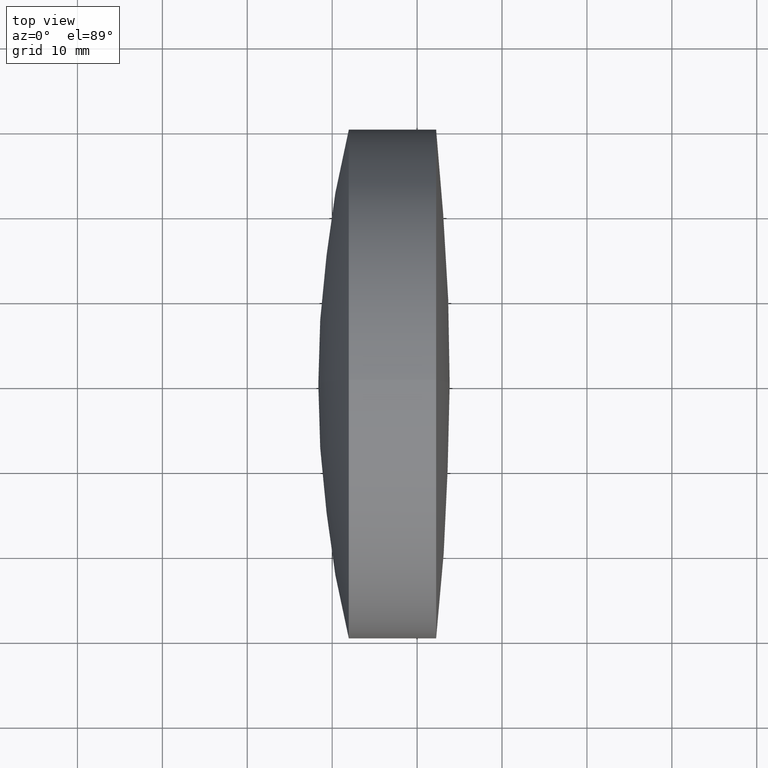
[diagram: clean part render]
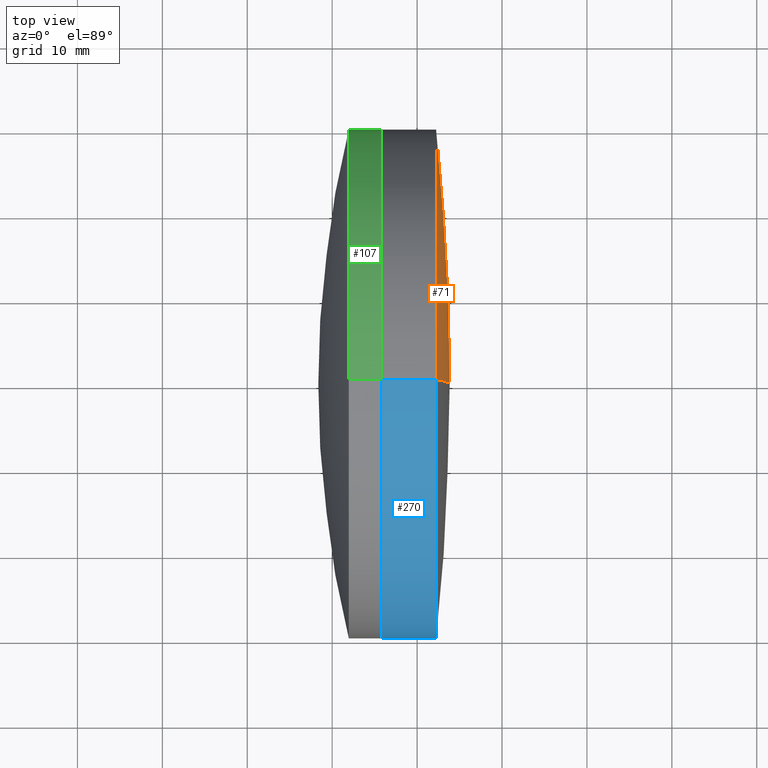
[diagram: same view with three faces highlighted in distinct colors, each labeled with its STEP entity id]
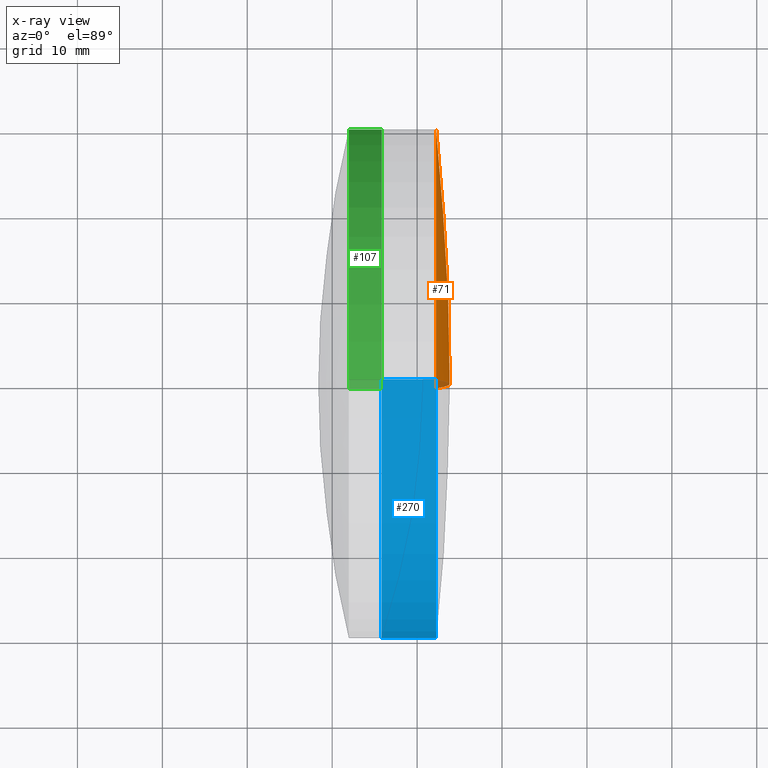
[diagram: x-ray of the same camera — body ghosted, the three highlighted faces saturated]
A machine part, top view with three faces highlighted in distinct colors.
The next image is the same camera in x-ray (body ghosted, the three faces saturated) — at least one of them is partly hidden behind the body in this view.
Their STEP definitions:

[orange] entity #71 — the highlighted spherical surface has radius 282.8 mm.
#3 = CARTESIAN_POINT ( 'NONE',  ( 31.03762555122546700, 0.0000000000000000000, 0.0000000000000000000 ) ) ;
#5 = CARTESIAN_POINT ( 'NONE',  ( 312.2418929441652700, 0.0000000000000000000, 0.0000000000000000000 ) ) ;
#14 = AXIS2_PLACEMENT_3D ( 'NONE', #110, #120, #284 ) ;
#16 = SPHERICAL_SURFACE ( 'NONE', #269, 282.7999999999999500 ) ;
#27 = CARTESIAN_POINT ( 'NONE',  ( 312.2418929441652700, 3.673940397442056800E-015, -29.99999999999997900 ) ) ;
#37 = CIRCLE ( 'NONE', #175, 282.7999999999999500 ) ;
#44 = CARTESIAN_POINT ( 'NONE',  ( 31.03762555122546700, 0.0000000000000000000, 0.0000000000000000000 ) ) ;
#69 = EDGE_CURVE ( 'NONE', #99, #293, #185, .T. ) ;
#71 = ADVANCED_FACE ( 'NONE', ( #342 ), #16, .T. ) ;
#92 = DIRECTION ( 'NONE',  ( -0.0000000000000000000, 1.000000000000000000, 1.224646799147353200E-016 ) ) ;
#99 = VERTEX_POINT ( 'NONE', #236 ) ;
#106 = ORIENTED_EDGE ( 'NONE', *, *, #292, .F. ) ;
#110 = CARTESIAN_POINT ( 'NONE',  ( 31.03762555122546700, 0.0000000000000000000, 0.0000000000000000000 ) ) ;
#111 = DIRECTION ( 'NONE',  ( 0.0000000000000000000, 1.000000000000000000, 0.0000000000000000000 ) ) ;
#112 = EDGE_LOOP ( 'NONE', ( #106, #132, #188 ) ) ;
#114 = VERTEX_POINT ( 'NONE', #273 ) ;
#120 = DIRECTION ( 'NONE',  ( 0.0000000000000000000, -1.000000000000000000, 0.0000000000000000000 ) ) ;
#132 = ORIENTED_EDGE ( 'NONE', *, *, #157, .T. ) ;
#157 = EDGE_CURVE ( 'NONE', #114, #293, #37, .T. ) ;
#175 = AXIS2_PLACEMENT_3D ( 'NONE', #44, #92, #346 ) ;
#185 = CIRCLE ( 'NONE', #192, 29.99999999999997900 ) ;
#188 = ORIENTED_EDGE ( 'NONE', *, *, #69, .F. ) ;
#192 = AXIS2_PLACEMENT_3D ( 'NONE', #5, #205, #317 ) ;
#203 = DIRECTION ( 'NONE',  ( 0.0000000000000000000, 0.0000000000000000000, 1.000000000000000000 ) ) ;
#205 = DIRECTION ( 'NONE',  ( -1.000000000000000000, -0.0000000000000000000, -0.0000000000000000000 ) ) ;
#236 = CARTESIAN_POINT ( 'NONE',  ( 312.2418929441652700, 0.0000000000000000000, 29.99999999999997900 ) ) ;
#269 = AXIS2_PLACEMENT_3D ( 'NONE', #3, #111, #203 ) ;
#273 = CARTESIAN_POINT ( 'NONE',  ( 313.8376255512254100, 0.0000000000000000000, 1.731650573994357100E-014 ) ) ;
#284 = DIRECTION ( 'NONE',  ( 0.0000000000000000000, 0.0000000000000000000, -1.000000000000000000 ) ) ;
#292 = EDGE_CURVE ( 'NONE', #114, #99, #294, .T. ) ;
#293 = VERTEX_POINT ( 'NONE', #27 ) ;
#294 = CIRCLE ( 'NONE', #14, 282.7999999999999500 ) ;
#317 = DIRECTION ( 'NONE',  ( 0.0000000000000000000, 0.0000000000000000000, 1.000000000000000000 ) ) ;
#342 = FACE_OUTER_BOUND ( 'NONE', #112, .T. ) ;
#346 = DIRECTION ( 'NONE',  ( 0.0000000000000000000, -1.224646799147353200E-016, 1.000000000000000000 ) ) ;

[blue] entity #270 — the highlighted cylindrical surface (partial cylindrical patch) has radius 30 mm, axis along (-1, -0, -0).
#6 = DIRECTION ( 'NONE',  ( -1.000000000000000000, -0.0000000000000000000, -0.0000000000000000000 ) ) ;
#9 = ORIENTED_EDGE ( 'NONE', *, *, #252, .T. ) ;
#10 = CIRCLE ( 'NONE', #260, 29.99999999999997900 ) ;
#21 = VECTOR ( 'NONE', #86, 1000.000000000000000 ) ;
#27 = CARTESIAN_POINT ( 'NONE',  ( 312.2418929441652700, 3.673940397442056800E-015, -29.99999999999997900 ) ) ;
#30 = AXIS2_PLACEMENT_3D ( 'NONE', #321, #319, #148 ) ;
#39 = FACE_OUTER_BOUND ( 'NONE', #251, .T. ) ;
#46 = LINE ( 'NONE', #151, #21 ) ;
#48 = ORIENTED_EDGE ( 'NONE', *, *, #150, .T. ) ;
#54 = DIRECTION ( 'NONE',  ( 0.0000000000000000000, 0.0000000000000000000, 1.000000000000000000 ) ) ;
#75 = VERTEX_POINT ( 'NONE', #170 ) ;
#85 = ORIENTED_EDGE ( 'NONE', *, *, #176, .F. ) ;
#86 = DIRECTION ( 'NONE',  ( -1.000000000000000000, -0.0000000000000000000, -0.0000000000000000000 ) ) ;
#88 = VERTEX_POINT ( 'NONE', #182 ) ;
#99 = VERTEX_POINT ( 'NONE', #236 ) ;
#122 = CIRCLE ( 'NONE', #126, 29.99999999999998900 ) ;
#123 = VECTOR ( 'NONE', #184, 1000.000000000000000 ) ;
#126 = AXIS2_PLACEMENT_3D ( 'NONE', #318, #135, #54 ) ;
#133 = LINE ( 'NONE', #345, #123 ) ;
#135 = DIRECTION ( 'NONE',  ( -1.000000000000000000, -0.0000000000000000000, -0.0000000000000000000 ) ) ;
#144 = CARTESIAN_POINT ( 'NONE',  ( 312.2418929441652700, 0.0000000000000000000, 0.0000000000000000000 ) ) ;
#148 = DIRECTION ( 'NONE',  ( 0.0000000000000000000, 0.0000000000000000000, 1.000000000000000000 ) ) ;
#150 = EDGE_CURVE ( 'NONE', #99, #88, #46, .T. ) ;
#151 = CARTESIAN_POINT ( 'NONE',  ( -0.5519199926577972300, 0.0000000000000000000, 29.99999999999998600 ) ) ;
#170 = CARTESIAN_POINT ( 'NONE',  ( 305.8239199956201400, 3.673940397442058400E-015, -29.99999999999998900 ) ) ;
#176 = EDGE_CURVE ( 'NONE', #75, #88, #122, .T. ) ;
#182 = CARTESIAN_POINT ( 'NONE',  ( 305.8239199956201400, 0.0000000000000000000, 29.99999999999998900 ) ) ;
#184 = DIRECTION ( 'NONE',  ( -1.000000000000000000, -0.0000000000000000000, -0.0000000000000000000 ) ) ;
#214 = ORIENTED_EDGE ( 'NONE', *, *, #235, .F. ) ;
#221 = CYLINDRICAL_SURFACE ( 'NONE', #30, 29.99999999999998600 ) ;
#235 = EDGE_CURVE ( 'NONE', #293, #75, #133, .T. ) ;
#236 = CARTESIAN_POINT ( 'NONE',  ( 312.2418929441652700, 0.0000000000000000000, 29.99999999999997900 ) ) ;
#251 = EDGE_LOOP ( 'NONE', ( #214, #9, #48, #85 ) ) ;
#252 = EDGE_CURVE ( 'NONE', #293, #99, #10, .T. ) ;
#260 = AXIS2_PLACEMENT_3D ( 'NONE', #144, #6, #311 ) ;
#270 = ADVANCED_FACE ( 'NONE', ( #39 ), #221, .T. ) ;
#293 = VERTEX_POINT ( 'NONE', #27 ) ;
#311 = DIRECTION ( 'NONE',  ( 0.0000000000000000000, 0.0000000000000000000, 1.000000000000000000 ) ) ;
#318 = CARTESIAN_POINT ( 'NONE',  ( 305.8239199956201400, 0.0000000000000000000, 0.0000000000000000000 ) ) ;
#319 = DIRECTION ( 'NONE',  ( -1.000000000000000000, -0.0000000000000000000, -0.0000000000000000000 ) ) ;
#321 = CARTESIAN_POINT ( 'NONE',  ( -0.5519199926577972300, 0.0000000000000000000, 0.0000000000000000000 ) ) ;
#345 = CARTESIAN_POINT ( 'NONE',  ( -0.5519199926577972300, 3.673940397442057600E-015, -29.99999999999998600 ) ) ;

[green] entity #107 — the highlighted cylindrical surface (partial cylindrical patch) has radius 30 mm, axis along (-1, -0, -0).
#7 = CYLINDRICAL_SURFACE ( 'NONE', #142, 30.00000000000000400 ) ;
#18 = VERTEX_POINT ( 'NONE', #164 ) ;
#19 = ORIENTED_EDGE ( 'NONE', *, *, #332, .F. ) ;
#25 = AXIS2_PLACEMENT_3D ( 'NONE', #97, #220, #291 ) ;
#40 = VERTEX_POINT ( 'NONE', #337 ) ;
#45 = DIRECTION ( 'NONE',  ( -1.000000000000000000, -0.0000000000000000000, -0.0000000000000000000 ) ) ;
#50 = CARTESIAN_POINT ( 'NONE',  ( 301.9579216428196600, 0.0000000000000000000, 0.0000000000000000000 ) ) ;
#62 = CARTESIAN_POINT ( 'NONE',  ( 124.5233095260452400, 0.0000000000000000000, 0.0000000000000000000 ) ) ;
#70 = CARTESIAN_POINT ( 'NONE',  ( 305.8239199956201400, 3.673940397442060000E-015, -30.00000000000000400 ) ) ;
#74 = DIRECTION ( 'NONE',  ( 0.0000000000000000000, 0.0000000000000000000, 1.000000000000000000 ) ) ;
#82 = EDGE_LOOP ( 'NONE', ( #283, #129, #306, #19 ) ) ;
#83 = EDGE_CURVE ( 'NONE', #91, #103, #226, .T. ) ;
#91 = VERTEX_POINT ( 'NONE', #168 ) ;
#97 = CARTESIAN_POINT ( 'NONE',  ( 305.8239199956201400, 0.0000000000000000000, 0.0000000000000000000 ) ) ;
#103 = VERTEX_POINT ( 'NONE', #70 ) ;
#107 = ADVANCED_FACE ( 'NONE', ( #136 ), #7, .T. ) ;
#108 = EDGE_CURVE ( 'NONE', #103, #18, #165, .T. ) ;
#117 = EDGE_CURVE ( 'NONE', #40, #18, #243, .T. ) ;
#129 = ORIENTED_EDGE ( 'NONE', *, *, #108, .T. ) ;
#131 = DIRECTION ( 'NONE',  ( -1.000000000000000000, -0.0000000000000000000, -0.0000000000000000000 ) ) ;
#136 = FACE_OUTER_BOUND ( 'NONE', #82, .T. ) ;
#142 = AXIS2_PLACEMENT_3D ( 'NONE', #62, #229, #74 ) ;
#161 = VECTOR ( 'NONE', #257, 1000.000000000000000 ) ;
#164 = CARTESIAN_POINT ( 'NONE',  ( 301.9579216428196600, 0.0000000000000000000, -30.00000000000000000 ) ) ;
#165 = LINE ( 'NONE', #225, #233 ) ;
#168 = CARTESIAN_POINT ( 'NONE',  ( 305.8239199956201400, 0.0000000000000000000, 30.00000000000000400 ) ) ;
#180 = AXIS2_PLACEMENT_3D ( 'NONE', #50, #45, #223 ) ;
#187 = CARTESIAN_POINT ( 'NONE',  ( 124.5233095260452400, 0.0000000000000000000, 30.00000000000000400 ) ) ;
#197 = LINE ( 'NONE', #187, #161 ) ;
#220 = DIRECTION ( 'NONE',  ( -1.000000000000000000, -0.0000000000000000000, -0.0000000000000000000 ) ) ;
#223 = DIRECTION ( 'NONE',  ( 0.0000000000000000000, 0.0000000000000000000, 1.000000000000000000 ) ) ;
#225 = CARTESIAN_POINT ( 'NONE',  ( 124.5233095260452400, 3.673940397442060000E-015, -30.00000000000000400 ) ) ;
#226 = CIRCLE ( 'NONE', #25, 30.00000000000000400 ) ;
#229 = DIRECTION ( 'NONE',  ( -1.000000000000000000, -0.0000000000000000000, -0.0000000000000000000 ) ) ;
#233 = VECTOR ( 'NONE', #131, 1000.000000000000000 ) ;
#243 = CIRCLE ( 'NONE', #180, 30.00000000000000400 ) ;
#257 = DIRECTION ( 'NONE',  ( -1.000000000000000000, -0.0000000000000000000, -0.0000000000000000000 ) ) ;
#283 = ORIENTED_EDGE ( 'NONE', *, *, #83, .T. ) ;
#291 = DIRECTION ( 'NONE',  ( 0.0000000000000000000, 0.0000000000000000000, 1.000000000000000000 ) ) ;
#306 = ORIENTED_EDGE ( 'NONE', *, *, #117, .F. ) ;
#332 = EDGE_CURVE ( 'NONE', #91, #40, #197, .T. ) ;
#337 = CARTESIAN_POINT ( 'NONE',  ( 301.9579216428196600, -3.673940397442059200E-015, 30.00000000000000000 ) ) ;